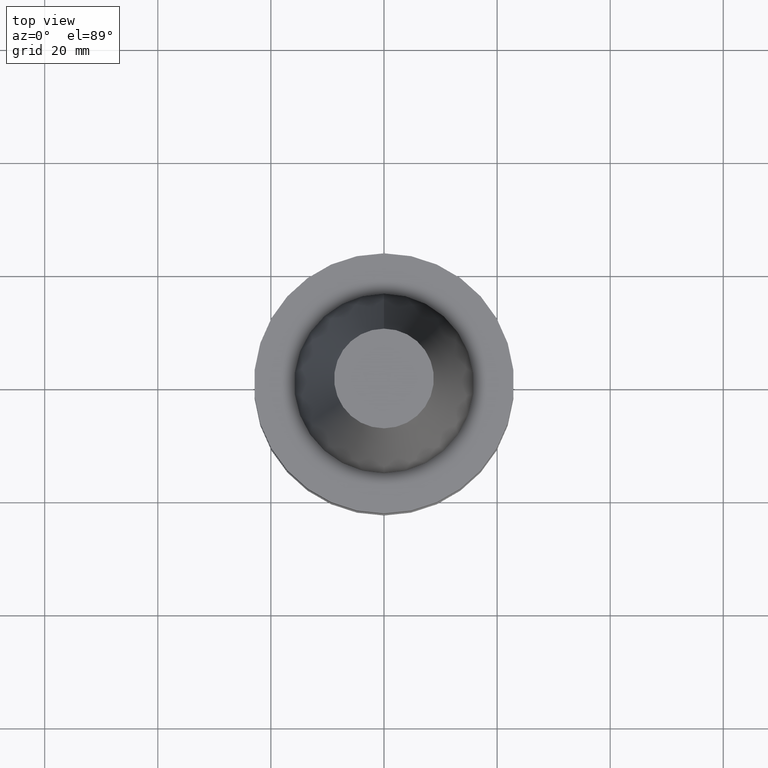
[diagram: clean part render]
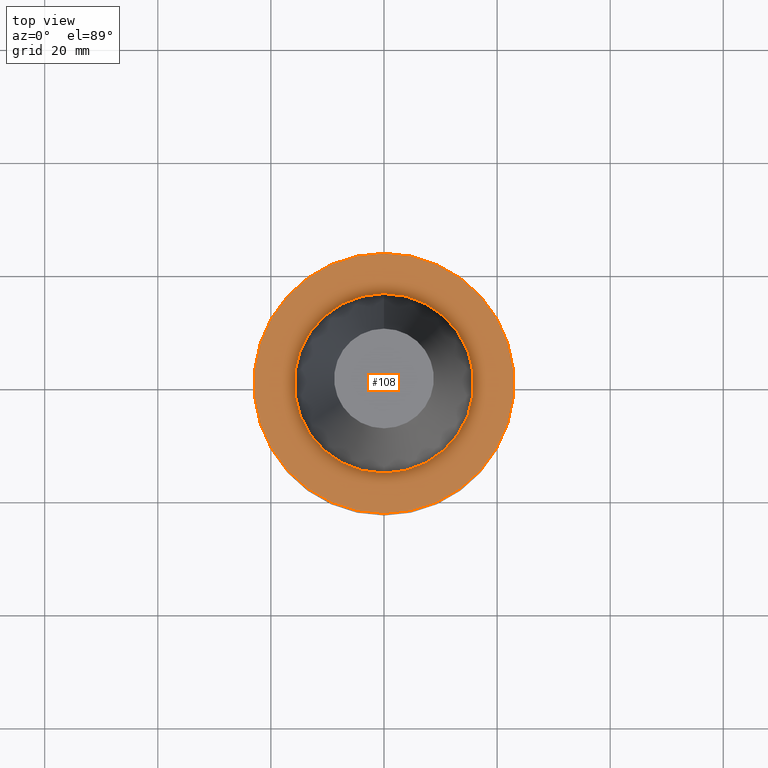
[diagram: same view with one face highlighted and labeled with its STEP entity id]
A machine part, top view. The second image highlights one B-rep face of the part: STEP entity #108.
In plain terms, the highlighted planar face has unit normal (-0, -0, 1).
Its self-contained STEP definition (entity closure, byte-faithful):
#67=EDGE_CURVE('Unnamed[1]',#160,#160,#161,.T.);
#108=ADVANCED_FACE('Unnamed[1]',(#224,#225),#226,.T.);
#121=EDGE_CURVE('Unnamed[1]',#246,#246,#247,.T.);
#160=VERTEX_POINT('',#282);
#161=CIRCLE('',#283,15.875);
#224=FACE_OUTER_BOUND('',#362,.T.);
#225=FACE_BOUND('',#363,.T.);
#226=PLANE('',#364);
#246=VERTEX_POINT('',#389);
#247=CIRCLE('',#390,23.0);
#282=CARTESIAN_POINT('',(6.12323399573675E-017,15.875,-0.999999999999998));
#283=AXIS2_PLACEMENT_3D('',#413,#414,#415);
#362=EDGE_LOOP('',(#485));
#363=EDGE_LOOP('',(#486));
#364=AXIS2_PLACEMENT_3D('',#487,#488,#489);
#389=CARTESIAN_POINT('',(6.12323399573674E-017,23.0,-0.999999999999997));
#390=AXIS2_PLACEMENT_3D('',#511,#512,#513);
#413=CARTESIAN_POINT('',(6.12323399573677E-017,1.22464679914735E-016,-1.0));
#414=DIRECTION('',(6.12323399573677E-017,1.22464679914735E-016,-1.0));
#415=DIRECTION('',(-1.23259516440783E-032,1.0,1.22464679914735E-016));
#485=ORIENTED_EDGE('',*,*,#121,.F.);
#486=ORIENTED_EDGE('',*,*,#67,.T.);
#487=CARTESIAN_POINT('',(6.12323399573674E-017,19.4375,-0.999999999999998));
#488=DIRECTION('',(-6.12323399573677E-017,-1.22464679914735E-016,1.0));
#489=DIRECTION('',(1.23259516440783E-032,-1.0,-1.22464679914735E-016));
#511=CARTESIAN_POINT('',(6.12323399573677E-017,1.22464679914735E-016,-1.0));
#512=DIRECTION('',(6.12323399573677E-017,1.22464679914735E-016,-1.0));
#513=DIRECTION('',(-1.23259516440783E-032,1.0,1.22464679914735E-016));